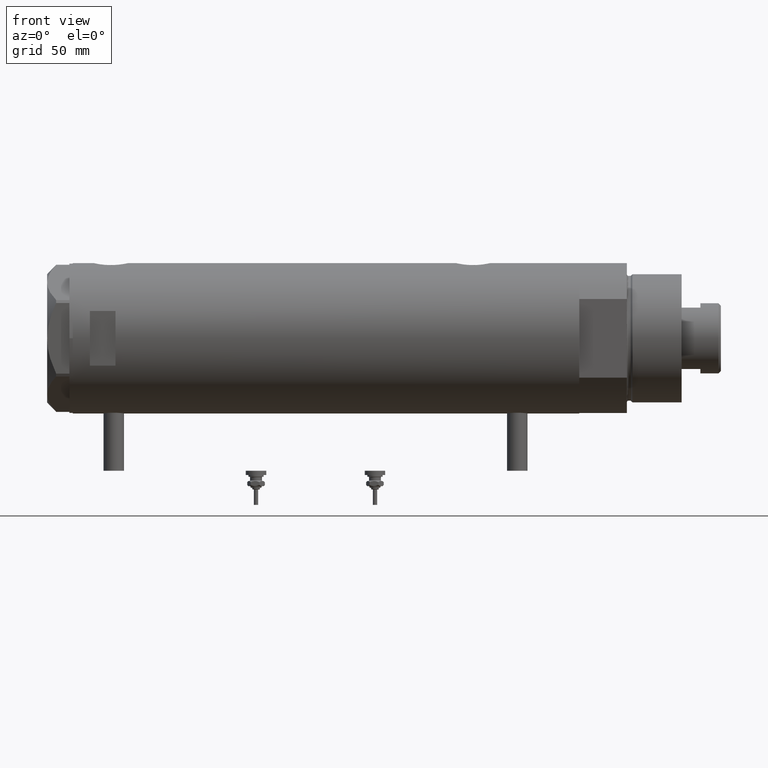
[diagram: clean part render]
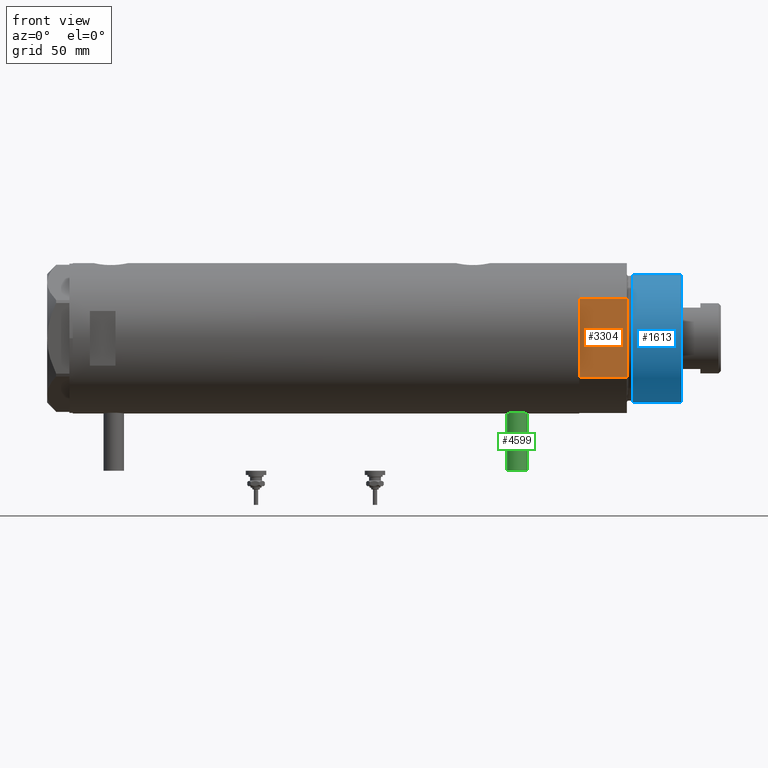
[diagram: same view with three faces highlighted in distinct colors, each labeled with its STEP entity id]
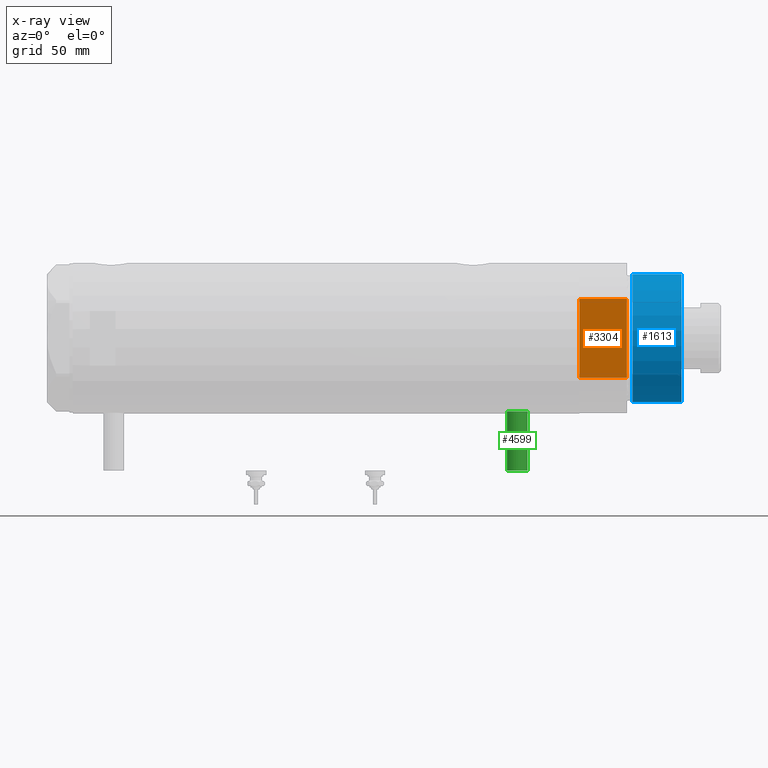
[diagram: x-ray of the same camera — body ghosted, the three highlighted faces saturated]
A machine part, front view with three faces highlighted in distinct colors.
The next image is the same camera in x-ray (body ghosted, the three faces saturated) — at least one of them is partly hidden behind the body in this view.
Their STEP definitions:

[orange] entity #3304 — the highlighted planar face has unit normal (-0, 1, 0).
#82 = CARTESIAN_POINT ( 'NONE',  ( -23.01629857296780557, -37.50000000000000000, 0.000000000000000000 ) ) ;
#225 = PLANE ( 'NONE',  #2402 ) ;
#334 = DIRECTION ( 'NONE',  ( -1.000000000000000000, -0.000000000000000000, -0.000000000000000000 ) ) ;
#416 = DIRECTION ( 'NONE',  ( -1.000000000000000000, -0.000000000000000000, -0.000000000000000000 ) ) ;
#417 = VERTEX_POINT ( 'NONE', #703 ) ;
#605 = ORIENTED_EDGE ( 'NONE', *, *, #2045, .T. ) ;
#656 = DIRECTION ( 'NONE',  ( -0.000000000000000000, 1.000000000000000000, 0.000000000000000000 ) ) ;
#702 = DIRECTION ( 'NONE',  ( -0.000000000000000000, -0.000000000000000000, 1.000000000000000000 ) ) ;
#703 = CARTESIAN_POINT ( 'NONE',  ( -23.01629857296780557, -37.50000000000000000, 27.89999999999999858 ) ) ;
#844 = VERTEX_POINT ( 'NONE', #5169 ) ;
#899 = CARTESIAN_POINT ( 'NONE',  ( -13.91941090707505957, -37.50000000000000000, 0.000000000000000000 ) ) ;
#901 = EDGE_CURVE ( 'NONE', #844, #3167, #1807, .T. ) ;
#1054 = VECTOR ( 'NONE', #5943, 1000.000000000000000 ) ;
#1061 = DIRECTION ( 'NONE',  ( 0.000000000000000000, -0.000000000000000000, 1.000000000000000000 ) ) ;
#1118 = CARTESIAN_POINT ( 'NONE',  ( -23.01629857296780557, -37.50000000000000000, 0.000000000000000000 ) ) ;
#1159 = VECTOR ( 'NONE', #416, 1000.000000000000000 ) ;
#1336 = ORIENTED_EDGE ( 'NONE', *, *, #901, .T. ) ;
#1337 = CARTESIAN_POINT ( 'NONE',  ( 13.91941090707505957, -37.50000000000000000, 0.000000000000000000 ) ) ;
#1393 = CARTESIAN_POINT ( 'NONE',  ( -23.01629857296780557, -37.50000000000000000, 27.89999999999999858 ) ) ;
#1455 = VERTEX_POINT ( 'NONE', #5008 ) ;
#1603 = EDGE_LOOP ( 'NONE', ( #1336, #605, #4424, #3860, #3004, #3539, #3404 ) ) ;
#1663 = VERTEX_POINT ( 'NONE', #1337 ) ;
#1707 = LINE ( 'NONE', #4863, #3939 ) ;
#1776 = EDGE_CURVE ( 'NONE', #1663, #4819, #2261, .T. ) ;
#1807 = LINE ( 'NONE', #1393, #2655 ) ;
#2045 = EDGE_CURVE ( 'NONE', #3167, #417, #1707, .T. ) ;
#2261 = LINE ( 'NONE', #82, #2299 ) ;
#2299 = VECTOR ( 'NONE', #5159, 1000.000000000000000 ) ;
#2402 = AXIS2_PLACEMENT_3D ( 'NONE', #3381, #656, #1061 ) ;
#2545 = CARTESIAN_POINT ( 'NONE',  ( 0.000000000000000000, -37.50000000000000000, 27.89999999999999858 ) ) ;
#2624 = LINE ( 'NONE', #4475, #1054 ) ;
#2655 = VECTOR ( 'NONE', #5133, 1000.000000000000000 ) ;
#2721 = LINE ( 'NONE', #5537, #1159 ) ;
#2944 = LINE ( 'NONE', #1118, #5125 ) ;
#3004 = ORIENTED_EDGE ( 'NONE', *, *, #1776, .F. ) ;
#3022 = LINE ( 'NONE', #4856, #5314 ) ;
#3167 = VERTEX_POINT ( 'NONE', #2545 ) ;
#3254 = CARTESIAN_POINT ( 'NONE',  ( 23.01629857296780557, -37.50000000000000000, 0.000000000000000000 ) ) ;
#3304 = ADVANCED_FACE ( 'NONE', ( #4837 ), #225, .F. ) ;
#3381 = CARTESIAN_POINT ( 'NONE',  ( -23.01629857296780557, -37.50000000000000000, 0.000000000000000000 ) ) ;
#3404 = ORIENTED_EDGE ( 'NONE', *, *, #3614, .T. ) ;
#3539 = ORIENTED_EDGE ( 'NONE', *, *, #4593, .F. ) ;
#3614 = EDGE_CURVE ( 'NONE', #5184, #844, #3022, .T. ) ;
#3860 = ORIENTED_EDGE ( 'NONE', *, *, #5997, .F. ) ;
#3879 = DIRECTION ( 'NONE',  ( -1.000000000000000000, -0.000000000000000000, -0.000000000000000000 ) ) ;
#3939 = VECTOR ( 'NONE', #334, 1000.000000000000000 ) ;
#4424 = ORIENTED_EDGE ( 'NONE', *, *, #4817, .F. ) ;
#4475 = CARTESIAN_POINT ( 'NONE',  ( -23.01629857296780557, -37.50000000000000000, 0.000000000000000000 ) ) ;
#4593 = EDGE_CURVE ( 'NONE', #5184, #1663, #2944, .T. ) ;
#4817 = EDGE_CURVE ( 'NONE', #1455, #417, #2624, .T. ) ;
#4819 = VERTEX_POINT ( 'NONE', #899 ) ;
#4837 = FACE_OUTER_BOUND ( 'NONE', #1603, .T. ) ;
#4856 = CARTESIAN_POINT ( 'NONE',  ( 23.01629857296780557, -37.50000000000000000, 0.000000000000000000 ) ) ;
#4863 = CARTESIAN_POINT ( 'NONE',  ( -23.01629857296780557, -37.50000000000000000, 27.89999999999999858 ) ) ;
#5008 = CARTESIAN_POINT ( 'NONE',  ( -23.01629857296780557, -37.50000000000000000, 0.000000000000000000 ) ) ;
#5125 = VECTOR ( 'NONE', #3879, 1000.000000000000000 ) ;
#5133 = DIRECTION ( 'NONE',  ( -1.000000000000000000, -0.000000000000000000, -0.000000000000000000 ) ) ;
#5159 = DIRECTION ( 'NONE',  ( -1.000000000000000000, -0.000000000000000000, -0.000000000000000000 ) ) ;
#5169 = CARTESIAN_POINT ( 'NONE',  ( 23.01629857296780557, -37.50000000000000000, 27.89999999999999858 ) ) ;
#5184 = VERTEX_POINT ( 'NONE', #3254 ) ;
#5314 = VECTOR ( 'NONE', #702, 1000.000000000000000 ) ;
#5537 = CARTESIAN_POINT ( 'NONE',  ( -23.01629857296780557, -37.50000000000000000, 0.000000000000000000 ) ) ;
#5943 = DIRECTION ( 'NONE',  ( -0.000000000000000000, -0.000000000000000000, 1.000000000000000000 ) ) ;
#5997 = EDGE_CURVE ( 'NONE', #4819, #1455, #2721, .T. ) ;

[blue] entity #1613 — the highlighted cylindrical surface (partial cylindrical patch) has radius 37.5 mm, axis along (-1, -0, 0).
#26 = DIRECTION ( 'NONE',  ( 1.000000000000000000, 0.000000000000000000, 0.000000000000000000 ) ) ;
#154 = CIRCLE ( 'NONE', #4421, 37.50000000000000711 ) ;
#229 = DIRECTION ( 'NONE',  ( 0.000000000000000000, 0.000000000000000000, 1.000000000000000000 ) ) ;
#329 = VERTEX_POINT ( 'NONE', #5760 ) ;
#547 = ORIENTED_EDGE ( 'NONE', *, *, #3720, .F. ) ;
#549 = AXIS2_PLACEMENT_3D ( 'NONE', #1645, #2172, #1275 ) ;
#1004 = LINE ( 'NONE', #3476, #4723 ) ;
#1275 = DIRECTION ( 'NONE',  ( -1.000000000000000000, 0.000000000000000000, 0.000000000000000000 ) ) ;
#1292 = CARTESIAN_POINT ( 'NONE',  ( 0.000000000000000000, 0.000000000000000000, 31.27384048104054415 ) ) ;
#1507 = CARTESIAN_POINT ( 'NONE',  ( 37.50000000000000711, 4.592425496802575156E-15, 31.27384048104054415 ) ) ;
#1613 = ADVANCED_FACE ( 'NONE', ( #5443 ), #4486, .T. ) ;
#1624 = CIRCLE ( 'NONE', #4908, 37.50000000000000711 ) ;
#1645 = CARTESIAN_POINT ( 'NONE',  ( 0.000000000000000000, 0.000000000000000000, 59.89999999999999147 ) ) ;
#2012 = CARTESIAN_POINT ( 'NONE',  ( -37.50000000000000711, 0.000000000000000000, 59.89999999999999147 ) ) ;
#2172 = DIRECTION ( 'NONE',  ( -0.000000000000000000, -0.000000000000000000, -1.000000000000000000 ) ) ;
#2234 = CARTESIAN_POINT ( 'NONE',  ( -37.50000000000000711, 0.000000000000000000, 31.27384048104054415 ) ) ;
#2333 = EDGE_LOOP ( 'NONE', ( #5969, #547, #4483, #3895 ) ) ;
#2491 = EDGE_CURVE ( 'NONE', #329, #5151, #4233, .T. ) ;
#2676 = EDGE_CURVE ( 'NONE', #5151, #4779, #154, .T. ) ;
#3476 = CARTESIAN_POINT ( 'NONE',  ( 37.50000000000000711, 4.592425496802575156E-15, 59.89999999999999147 ) ) ;
#3681 = VERTEX_POINT ( 'NONE', #3740 ) ;
#3720 = EDGE_CURVE ( 'NONE', #329, #3681, #1624, .T. ) ;
#3740 = CARTESIAN_POINT ( 'NONE',  ( 37.50000000000000711, 4.592425496802575156E-15, 59.89999999999999147 ) ) ;
#3808 = DIRECTION ( 'NONE',  ( -0.000000000000000000, -0.000000000000000000, -1.000000000000000000 ) ) ;
#3888 = DIRECTION ( 'NONE',  ( -0.000000000000000000, -0.000000000000000000, -1.000000000000000000 ) ) ;
#3895 = ORIENTED_EDGE ( 'NONE', *, *, #2676, .T. ) ;
#4233 = LINE ( 'NONE', #2012, #4897 ) ;
#4421 = AXIS2_PLACEMENT_3D ( 'NONE', #1292, #5492, #26 ) ;
#4483 = ORIENTED_EDGE ( 'NONE', *, *, #2491, .T. ) ;
#4486 = CYLINDRICAL_SURFACE ( 'NONE', #549, 37.50000000000000711 ) ;
#4585 = CARTESIAN_POINT ( 'NONE',  ( 0.000000000000000000, 0.000000000000000000, 59.89999999999999147 ) ) ;
#4723 = VECTOR ( 'NONE', #3888, 1000.000000000000000 ) ;
#4779 = VERTEX_POINT ( 'NONE', #1507 ) ;
#4897 = VECTOR ( 'NONE', #3808, 1000.000000000000000 ) ;
#4908 = AXIS2_PLACEMENT_3D ( 'NONE', #4585, #229, #6001 ) ;
#5151 = VERTEX_POINT ( 'NONE', #2234 ) ;
#5290 = EDGE_CURVE ( 'NONE', #3681, #4779, #1004, .T. ) ;
#5443 = FACE_OUTER_BOUND ( 'NONE', #2333, .T. ) ;
#5492 = DIRECTION ( 'NONE',  ( -0.000000000000000000, -0.000000000000000000, 1.000000000000000000 ) ) ;
#5760 = CARTESIAN_POINT ( 'NONE',  ( -37.50000000000000711, 0.000000000000000000, 59.89999999999999147 ) ) ;
#5969 = ORIENTED_EDGE ( 'NONE', *, *, #5290, .F. ) ;
#6001 = DIRECTION ( 'NONE',  ( 1.000000000000000000, 0.000000000000000000, 0.000000000000000000 ) ) ;

[green] entity #4599 — the highlighted cylindrical surface (edge-blend (fillet) strip) has radius 6 mm, axis along (0, 0, 1).
#2 = DIRECTION ( 'NONE',  ( 0.000000000000000000, 0.000000000000000000, 1.000000000000000000 ) ) ;
#217 = ORIENTED_EDGE ( 'NONE', *, *, #865, .T. ) ;
#247 = VERTEX_POINT ( 'NONE', #1487 ) ;
#465 = VERTEX_POINT ( 'NONE', #3952 ) ;
#606 = CYLINDRICAL_SURFACE ( 'NONE', #1921, 6.000000000000005329 ) ;
#637 = VECTOR ( 'NONE', #2584, 1000.000000000000000 ) ;
#865 = EDGE_CURVE ( 'NONE', #4017, #3729, #5697, .T. ) ;
#989 = EDGE_CURVE ( 'NONE', #465, #4017, #1009, .T. ) ;
#1009 = LINE ( 'NONE', #2401, #3463 ) ;
#1257 = CARTESIAN_POINT ( 'NONE',  ( -77.50000000000000000, 7.347880794884122694E-16, -105.8999999999999915 ) ) ;
#1487 = CARTESIAN_POINT ( 'NONE',  ( -77.50000000000000000, 7.347880794884119736E-16, -105.8999999999999915 ) ) ;
#1558 = DIRECTION ( 'NONE',  ( 0.000000000000000000, 0.000000000000000000, -1.000000000000000000 ) ) ;
#1763 = ORIENTED_EDGE ( 'NONE', *, *, #989, .T. ) ;
#1921 = AXIS2_PLACEMENT_3D ( 'NONE', #5257, #2479, #1558 ) ;
#2104 = AXIS2_PLACEMENT_3D ( 'NONE', #3728, #5493, #5022 ) ;
#2401 = CARTESIAN_POINT ( 'NONE',  ( -77.50000000000000000, 0.000000000000000000, -117.9000000000000057 ) ) ;
#2479 = DIRECTION ( 'NONE',  ( 1.000000000000000000, -0.000000000000000000, -0.000000000000000000 ) ) ;
#2584 = DIRECTION ( 'NONE',  ( 1.000000000000000000, -0.000000000000000000, -0.000000000000000000 ) ) ;
#2822 = CARTESIAN_POINT ( 'NONE',  ( -42.79999999999999716, 0.000000000000000000, -111.9000000000000057 ) ) ;
#2883 = EDGE_CURVE ( 'NONE', #247, #3729, #4766, .T. ) ;
#2912 = DIRECTION ( 'NONE',  ( 1.000000000000000000, -0.000000000000000000, -0.000000000000000000 ) ) ;
#2930 = ORIENTED_EDGE ( 'NONE', *, *, #2883, .F. ) ;
#3006 = CARTESIAN_POINT ( 'NONE',  ( -42.79999999999999716, 0.000000000000000000, -117.9000000000000057 ) ) ;
#3165 = AXIS2_PLACEMENT_3D ( 'NONE', #2822, #4086, #2 ) ;
#3463 = VECTOR ( 'NONE', #2912, 1000.000000000000000 ) ;
#3728 = CARTESIAN_POINT ( 'NONE',  ( -77.50000000000000000, 0.000000000000000000, -111.9000000000000057 ) ) ;
#3729 = VERTEX_POINT ( 'NONE', #5834 ) ;
#3952 = CARTESIAN_POINT ( 'NONE',  ( -77.50000000000000000, 0.000000000000000000, -117.9000000000000057 ) ) ;
#4017 = VERTEX_POINT ( 'NONE', #3006 ) ;
#4086 = DIRECTION ( 'NONE',  ( -1.000000000000000000, 0.000000000000000000, 0.000000000000000000 ) ) ;
#4599 = ADVANCED_FACE ( 'NONE', ( #4773 ), #606, .T. ) ;
#4766 = LINE ( 'NONE', #1257, #637 ) ;
#4773 = FACE_OUTER_BOUND ( 'NONE', #5103, .T. ) ;
#4812 = CIRCLE ( 'NONE', #2104, 6.000000000000005329 ) ;
#5022 = DIRECTION ( 'NONE',  ( 0.000000000000000000, 0.000000000000000000, 1.000000000000000000 ) ) ;
#5103 = EDGE_LOOP ( 'NONE', ( #2930, #5951, #1763, #217 ) ) ;
#5230 = EDGE_CURVE ( 'NONE', #465, #247, #4812, .T. ) ;
#5257 = CARTESIAN_POINT ( 'NONE',  ( -77.50000000000000000, 0.000000000000000000, -111.9000000000000057 ) ) ;
#5493 = DIRECTION ( 'NONE',  ( -1.000000000000000000, 0.000000000000000000, 0.000000000000000000 ) ) ;
#5697 = CIRCLE ( 'NONE', #3165, 6.000000000000005329 ) ;
#5834 = CARTESIAN_POINT ( 'NONE',  ( -42.79999999999999716, 7.347880794884119736E-16, -105.8999999999999915 ) ) ;
#5951 = ORIENTED_EDGE ( 'NONE', *, *, #5230, .F. ) ;